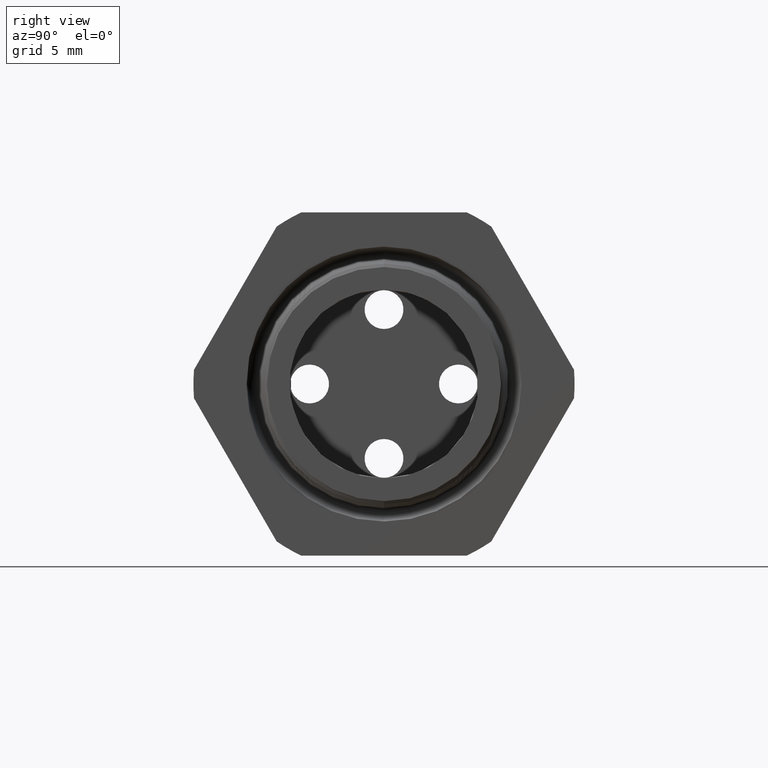
[diagram: clean part render]
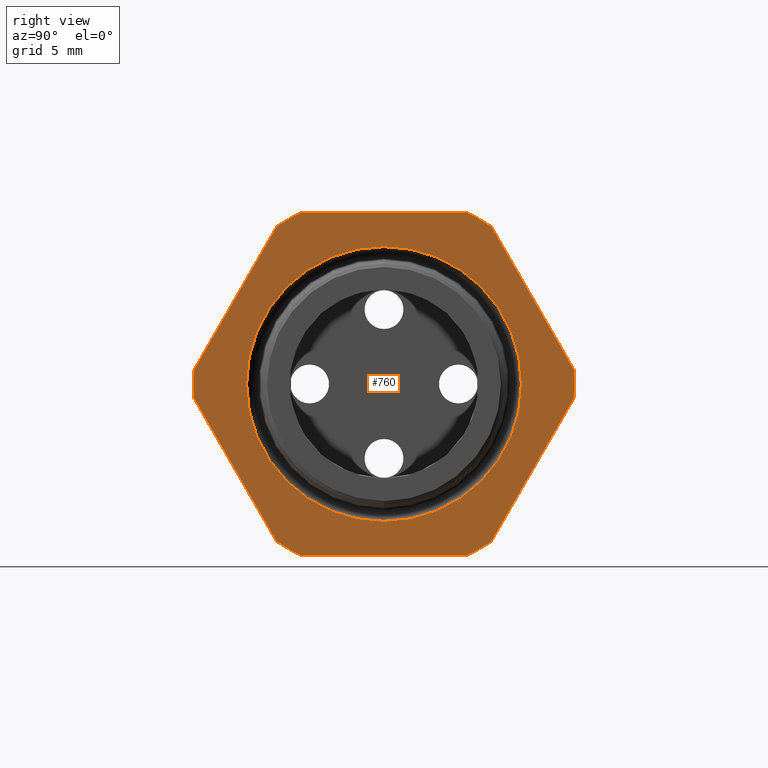
[diagram: same view with one face highlighted and labeled with its STEP entity id]
A machine part, right view. The second image highlights one B-rep face of the part: STEP entity #760.
In plain terms, the highlighted planar face has unit normal (1, 0, 0).
Its self-contained STEP definition (entity closure, byte-faithful):
#678 = EDGE_LOOP ( 'NONE', ( #679, #681 ) ) ;
#679 = ORIENTED_EDGE ( 'NONE', *, *, #680, .F. ) ;
#680 = EDGE_CURVE ( 'NONE', #1565, #1539, #3212, .T. ) ;
#681 = ORIENTED_EDGE ( 'NONE', *, *, #1564, .F. ) ;
#682 = EDGE_LOOP ( 'NONE', ( #683, #741, #744, #747, #750, #753, #726, #729, #732, #735, #738, #796 ) ) ;
#683 = ORIENTED_EDGE ( 'NONE', *, *, #684, .T. ) ;
#684 = EDGE_CURVE ( 'NONE', #685, #686, #3265, .T. ) ;
#685 = VERTEX_POINT ( 'NONE', #3261 ) ;
#686 = VERTEX_POINT ( 'NONE', #3260 ) ;
#726 = ORIENTED_EDGE ( 'NONE', *, *, #727, .T. ) ;
#727 = EDGE_CURVE ( 'NONE', #755, #728, #3360, .T. ) ;
#728 = VERTEX_POINT ( 'NONE', #3356 ) ;
#729 = ORIENTED_EDGE ( 'NONE', *, *, #730, .T. ) ;
#730 = EDGE_CURVE ( 'NONE', #728, #731, #3355, .T. ) ;
#731 = VERTEX_POINT ( 'NONE', #3350 ) ;
#732 = ORIENTED_EDGE ( 'NONE', *, *, #733, .T. ) ;
#733 = EDGE_CURVE ( 'NONE', #731, #734, #3349, .T. ) ;
#734 = VERTEX_POINT ( 'NONE', #3345 ) ;
#735 = ORIENTED_EDGE ( 'NONE', *, *, #736, .T. ) ;
#736 = EDGE_CURVE ( 'NONE', #734, #737, #3344, .T. ) ;
#737 = VERTEX_POINT ( 'NONE', #3339 ) ;
#738 = ORIENTED_EDGE ( 'NONE', *, *, #739, .T. ) ;
#739 = EDGE_CURVE ( 'NONE', #737, #740, #3338, .T. ) ;
#740 = VERTEX_POINT ( 'NONE', #3334 ) ;
#741 = ORIENTED_EDGE ( 'NONE', *, *, #742, .T. ) ;
#742 = EDGE_CURVE ( 'NONE', #686, #743, #3333, .T. ) ;
#743 = VERTEX_POINT ( 'NONE', #3388 ) ;
#744 = ORIENTED_EDGE ( 'NONE', *, *, #745, .T. ) ;
#745 = EDGE_CURVE ( 'NONE', #743, #746, #3387, .T. ) ;
#746 = VERTEX_POINT ( 'NONE', #3383 ) ;
#747 = ORIENTED_EDGE ( 'NONE', *, *, #748, .T. ) ;
#748 = EDGE_CURVE ( 'NONE', #746, #749, #3382, .T. ) ;
#749 = VERTEX_POINT ( 'NONE', #3377 ) ;
#750 = ORIENTED_EDGE ( 'NONE', *, *, #751, .T. ) ;
#751 = EDGE_CURVE ( 'NONE', #749, #752, #3376, .T. ) ;
#752 = VERTEX_POINT ( 'NONE', #3372 ) ;
#753 = ORIENTED_EDGE ( 'NONE', *, *, #754, .T. ) ;
#754 = EDGE_CURVE ( 'NONE', #752, #755, #3371, .T. ) ;
#755 = VERTEX_POINT ( 'NONE', #3366 ) ;
#760 = ADVANCED_FACE ( 'NONE', ( #3425, #3419 ), #3418, .T. ) ;
#796 = ORIENTED_EDGE ( 'NONE', *, *, #797, .T. ) ;
#797 = EDGE_CURVE ( 'NONE', #740, #685, #3482, .T. ) ;
#1539 = VERTEX_POINT ( 'NONE', #4622 ) ;
#1564 = EDGE_CURVE ( 'NONE', #1539, #1565, #4702, .T. ) ;
#1565 = VERTEX_POINT ( 'NONE', #4697 ) ;
#3209 = DIRECTION ( 'NONE',  ( 0.0000000000000000000, 0.0000000000000000000, -1.000000000000000000 ) ) ;
#3210 = DIRECTION ( 'NONE',  ( 1.000000000000000000, 0.0000000000000000000, 0.0000000000000000000 ) ) ;
#3211 = AXIS2_PLACEMENT_3D ( 'NONE', #3219, #3210, #3209 ) ;
#3212 = CIRCLE ( 'NONE', #3211, 0.4243759711786115300 ) ;
#3219 = CARTESIAN_POINT ( 'NONE',  ( -0.3100000000000000000, 0.0000000000000000000, 0.0000000000000000000 ) ) ;
#3260 = CARTESIAN_POINT ( 'NONE',  ( -0.3100000000000000000, 0.5866618723924790200, -0.04387183015273746900 ) ) ;
#3261 = CARTESIAN_POINT ( 'NONE',  ( -0.3099999999999998300, 0.3313250556190264200, -0.4861281698472626500 ) ) ;
#3262 = DIRECTION ( 'NONE',  ( 0.0000000000000000000, 0.4999999999999998300, 0.8660254037844386000 ) ) ;
#3263 = VECTOR ( 'NONE', #3262, 39.37007874015748900 ) ;
#3264 = CARTESIAN_POINT ( 'NONE',  ( -0.3100000000000000000, 0.7239934640057527100, 0.1939934640057523800 ) ) ;
#3265 = LINE ( 'NONE', #3264, #3263 ) ;
#3331 = CARTESIAN_POINT ( 'NONE',  ( -0.3100000000000000000, 0.0000000000000000000, 0.0000000000000000000 ) ) ;
#3332 = AXIS2_PLACEMENT_3D ( 'NONE', #3331, #3390, #3389 ) ;
#3333 = CIRCLE ( 'NONE', #3332, 0.5882999999999999300 ) ;
#3334 = CARTESIAN_POINT ( 'NONE',  ( -0.3099999999999998300, 0.2553368167734529900, -0.5300000000000001400 ) ) ;
#3335 = DIRECTION ( 'NONE',  ( 0.0000000000000000000, 1.000000000000000000, 0.0000000000000000000 ) ) ;
#3336 = VECTOR ( 'NONE', #3335, 39.37007874015748100 ) ;
#3337 = CARTESIAN_POINT ( 'NONE',  ( -0.3100000000000000000, 1.060000000000000100, -0.5300000000000001400 ) ) ;
#3338 = LINE ( 'NONE', #3337, #3336 ) ;
#3339 = CARTESIAN_POINT ( 'NONE',  ( -0.3099999999999998300, -0.2553368167734529900, -0.5300000000000001400 ) ) ;
#3340 = DIRECTION ( 'NONE',  ( 0.0000000000000000000, 0.0000000000000000000, -1.000000000000000000 ) ) ;
#3341 = DIRECTION ( 'NONE',  ( 1.000000000000000000, 0.0000000000000000000, 0.0000000000000000000 ) ) ;
#3342 = CARTESIAN_POINT ( 'NONE',  ( -0.3100000000000000000, 0.0000000000000000000, 0.0000000000000000000 ) ) ;
#3343 = AXIS2_PLACEMENT_3D ( 'NONE', #3342, #3341, #3340 ) ;
#3344 = CIRCLE ( 'NONE', #3343, 0.5883000000000000500 ) ;
#3345 = CARTESIAN_POINT ( 'NONE',  ( -0.3099999999999998300, -0.3313250556190258700, -0.4861281698472630400 ) ) ;
#3346 = DIRECTION ( 'NONE',  ( 0.0000000000000000000, 0.5000000000000001100, -0.8660254037844386000 ) ) ;
#3347 = VECTOR ( 'NONE', #3346, 39.37007874015748100 ) ;
#3348 = CARTESIAN_POINT ( 'NONE',  ( -0.3100000000000000000, -0.1939934640057525700, -0.7239934640057527100 ) ) ;
#3349 = LINE ( 'NONE', #3348, #3347 ) ;
#3350 = CARTESIAN_POINT ( 'NONE',  ( -0.3099999999999998300, -0.5866618723924791300, -0.04387183015273715000 ) ) ;
#3351 = DIRECTION ( 'NONE',  ( 0.0000000000000000000, 0.0000000000000000000, -1.000000000000000000 ) ) ;
#3352 = DIRECTION ( 'NONE',  ( 1.000000000000000000, 0.0000000000000000000, 0.0000000000000000000 ) ) ;
#3353 = CARTESIAN_POINT ( 'NONE',  ( -0.3100000000000000000, 0.0000000000000000000, 0.0000000000000000000 ) ) ;
#3354 = AXIS2_PLACEMENT_3D ( 'NONE', #3353, #3352, #3351 ) ;
#3355 = CIRCLE ( 'NONE', #3354, 0.5883000000000000500 ) ;
#3356 = CARTESIAN_POINT ( 'NONE',  ( -0.3099999999999998300, -0.5866618723924791300, 0.04387183015273703200 ) ) ;
#3357 = DIRECTION ( 'NONE',  ( 0.0000000000000000000, -0.4999999999999998300, -0.8660254037844388200 ) ) ;
#3358 = VECTOR ( 'NONE', #3357, 39.37007874015748100 ) ;
#3359 = CARTESIAN_POINT ( 'NONE',  ( -0.3100000000000000000, -0.1939934640057525700, 0.7239934640057522600 ) ) ;
#3360 = LINE ( 'NONE', #3359, #3358 ) ;
#3366 = CARTESIAN_POINT ( 'NONE',  ( -0.3099999999999998300, -0.3313250556190262000, 0.4861281698472627600 ) ) ;
#3367 = DIRECTION ( 'NONE',  ( 0.0000000000000000000, 0.0000000000000000000, -1.000000000000000000 ) ) ;
#3368 = DIRECTION ( 'NONE',  ( 1.000000000000000000, 0.0000000000000000000, 0.0000000000000000000 ) ) ;
#3369 = CARTESIAN_POINT ( 'NONE',  ( -0.3100000000000000000, 0.0000000000000000000, 0.0000000000000000000 ) ) ;
#3370 = AXIS2_PLACEMENT_3D ( 'NONE', #3369, #3368, #3367 ) ;
#3371 = CIRCLE ( 'NONE', #3370, 0.5882999999999999300 ) ;
#3372 = CARTESIAN_POINT ( 'NONE',  ( -0.3099999999999998300, -0.2553368167734533200, 0.5299999999999999200 ) ) ;
#3373 = DIRECTION ( 'NONE',  ( 0.0000000000000000000, -1.000000000000000000, 0.0000000000000000000 ) ) ;
#3374 = VECTOR ( 'NONE', #3373, 39.37007874015748100 ) ;
#3375 = CARTESIAN_POINT ( 'NONE',  ( -0.3100000000000000000, 1.060000000000000100, 0.5300000000000001400 ) ) ;
#3376 = LINE ( 'NONE', #3375, #3374 ) ;
#3377 = CARTESIAN_POINT ( 'NONE',  ( -0.3099999999999998300, 0.2553368167734530500, 0.5300000000000001400 ) ) ;
#3378 = DIRECTION ( 'NONE',  ( 0.0000000000000000000, 0.0000000000000000000, -1.000000000000000000 ) ) ;
#3379 = DIRECTION ( 'NONE',  ( 1.000000000000000000, 0.0000000000000000000, 0.0000000000000000000 ) ) ;
#3380 = CARTESIAN_POINT ( 'NONE',  ( -0.3100000000000000000, 0.0000000000000000000, 0.0000000000000000000 ) ) ;
#3381 = AXIS2_PLACEMENT_3D ( 'NONE', #3380, #3379, #3378 ) ;
#3382 = CIRCLE ( 'NONE', #3381, 0.5882999999999999300 ) ;
#3383 = CARTESIAN_POINT ( 'NONE',  ( -0.3099999999999998300, 0.3313250556190263700, 0.4861281698472626500 ) ) ;
#3384 = DIRECTION ( 'NONE',  ( 0.0000000000000000000, -0.4999999999999998300, 0.8660254037844386000 ) ) ;
#3385 = VECTOR ( 'NONE', #3384, 39.37007874015748900 ) ;
#3386 = CARTESIAN_POINT ( 'NONE',  ( -0.3100000000000000000, 0.7239934640057524900, -0.1939934640057524000 ) ) ;
#3387 = LINE ( 'NONE', #3386, #3385 ) ;
#3388 = CARTESIAN_POINT ( 'NONE',  ( -0.3099999999999998300, 0.5866618723924789100, 0.04387183015273755900 ) ) ;
#3389 = DIRECTION ( 'NONE',  ( 0.0000000000000000000, 0.0000000000000000000, -1.000000000000000000 ) ) ;
#3390 = DIRECTION ( 'NONE',  ( 1.000000000000000000, 0.0000000000000000000, 0.0000000000000000000 ) ) ;
#3414 = DIRECTION ( 'NONE',  ( 0.0000000000000000000, 0.0000000000000000000, -1.000000000000000000 ) ) ;
#3415 = DIRECTION ( 'NONE',  ( 1.000000000000000000, 0.0000000000000000000, 0.0000000000000000000 ) ) ;
#3416 = CARTESIAN_POINT ( 'NONE',  ( -0.3100000000000000000, 1.060000000000000100, 0.0000000000000000000 ) ) ;
#3417 = AXIS2_PLACEMENT_3D ( 'NONE', #3416, #3415, #3414 ) ;
#3418 = PLANE ( 'NONE',  #3417 ) ;
#3419 = FACE_OUTER_BOUND ( 'NONE', #682, .T. ) ;
#3425 = FACE_BOUND ( 'NONE', #678, .T. ) ;
#3478 = DIRECTION ( 'NONE',  ( 0.0000000000000000000, 0.0000000000000000000, -1.000000000000000000 ) ) ;
#3479 = DIRECTION ( 'NONE',  ( 1.000000000000000000, 0.0000000000000000000, 0.0000000000000000000 ) ) ;
#3480 = CARTESIAN_POINT ( 'NONE',  ( -0.3100000000000000000, 0.0000000000000000000, 0.0000000000000000000 ) ) ;
#3481 = AXIS2_PLACEMENT_3D ( 'NONE', #3480, #3479, #3478 ) ;
#3482 = CIRCLE ( 'NONE', #3481, 0.5882999999999999300 ) ;
#4622 = CARTESIAN_POINT ( 'NONE',  ( -0.3100000000000000000, 5.197106747389359900E-017, 0.4243759711786115300 ) ) ;
#4697 = CARTESIAN_POINT ( 'NONE',  ( -0.3100000000000000000, 0.0000000000000000000, -0.4243759711786115300 ) ) ;
#4698 = DIRECTION ( 'NONE',  ( 0.0000000000000000000, 0.0000000000000000000, -1.000000000000000000 ) ) ;
#4699 = DIRECTION ( 'NONE',  ( 1.000000000000000000, 0.0000000000000000000, 0.0000000000000000000 ) ) ;
#4700 = CARTESIAN_POINT ( 'NONE',  ( -0.3100000000000000000, 0.0000000000000000000, 0.0000000000000000000 ) ) ;
#4701 = AXIS2_PLACEMENT_3D ( 'NONE', #4700, #4699, #4698 ) ;
#4702 = CIRCLE ( 'NONE', #4701, 0.4243759711786115300 ) ;